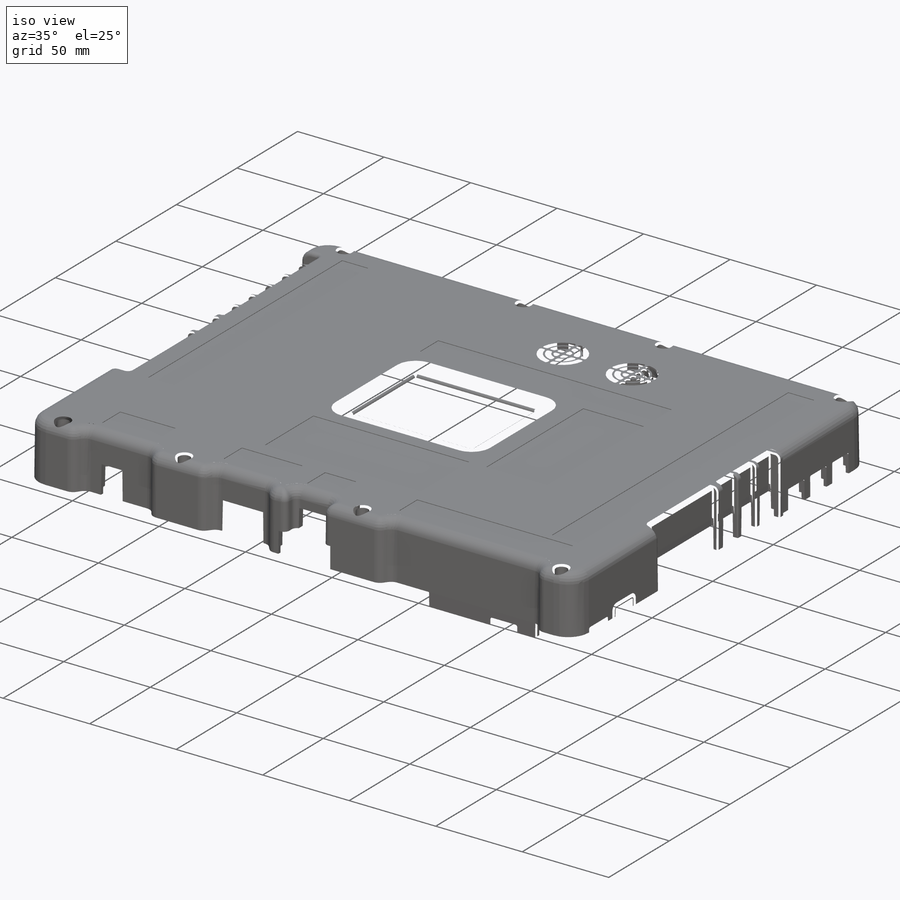
[diagram: iso view]
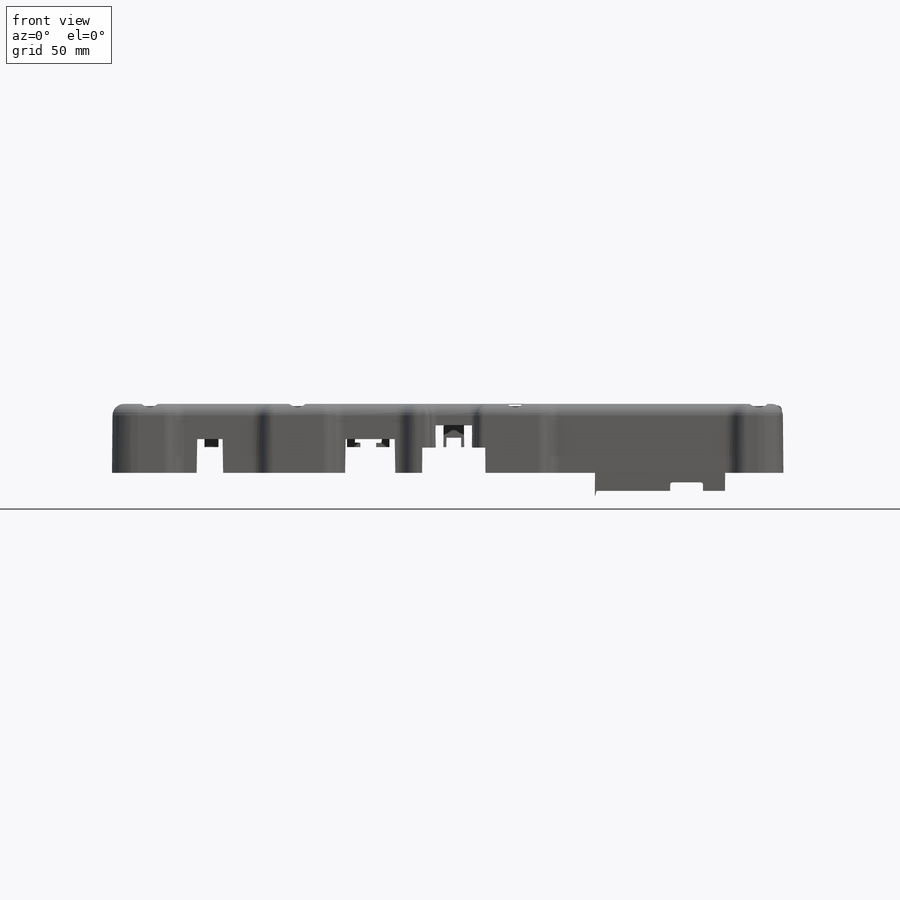
[diagram: front view]
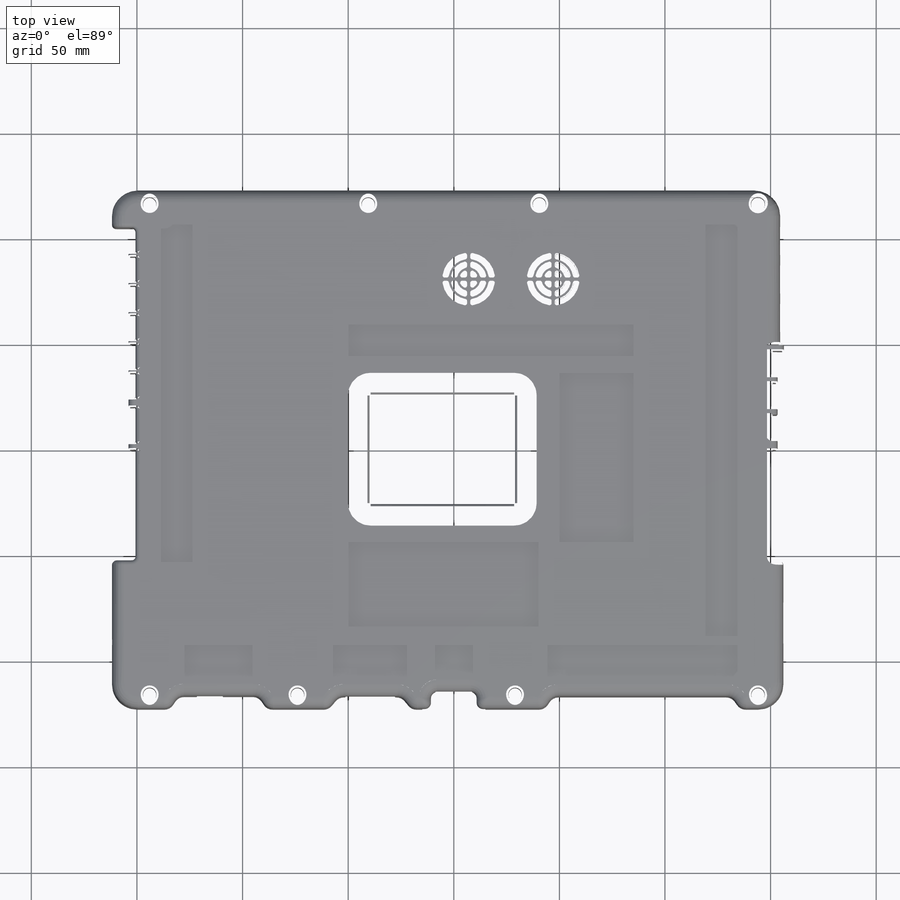
[diagram: top view]
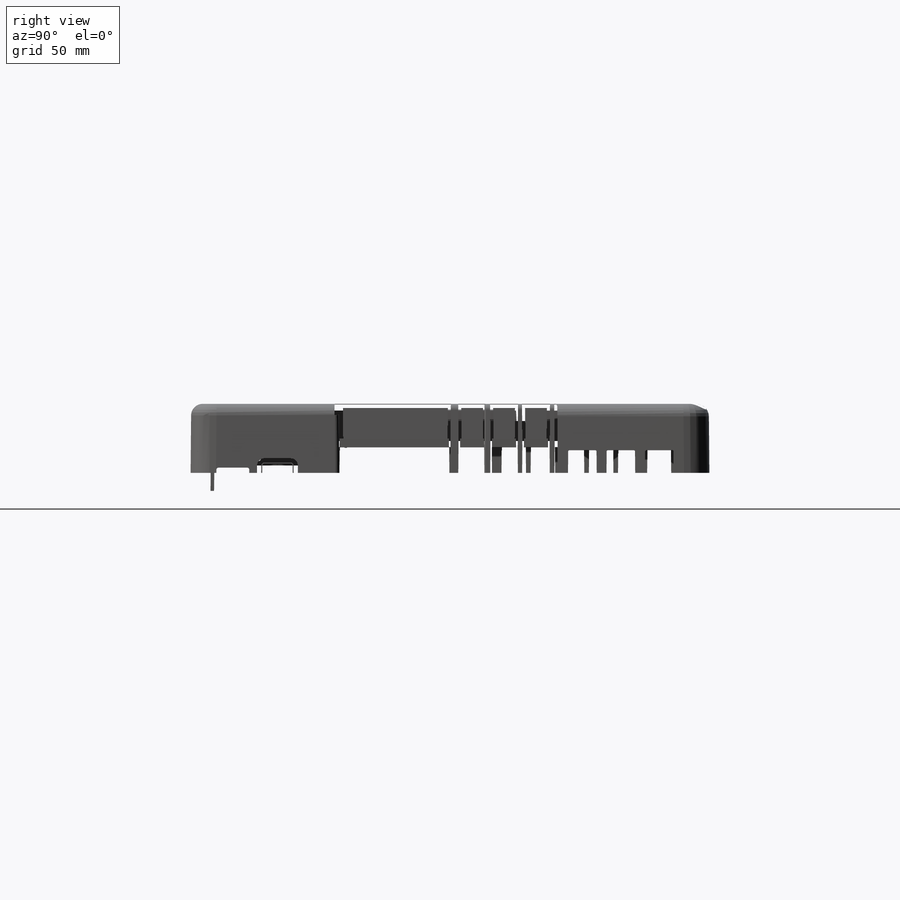
[diagram: right view]
SOLIDWORKS PART (.sldprt)
format: sldprt  version: not decoded by parser v0  size: 6,935,040 bytes
history: native  units: mm
features: sketch x84, fillet x63, cut_extrude x31, extrude x15, shell x13, plane x9, chamfer x8, mirror x5, pattern_linear x3, pattern_circular x2, material x1 (+10 scaffold rows collapsed)
feature tree (244):
  scaffold x10  (default folders/planes/origin — collapsed)
  material  "Material <not specified>"
  plane  "Спереди"
  plane  "Сверху"
  plane  "Справа"
  sketch  "Эскиз1"  dims[c1.D1=3.5mm c1.D2=~161.623866mm c1.D3=40.0mm c1.D4=29.0mm c1.D5=0.0mm c1.D6=4.0mm c1.D7=20.0mm c1.D8=4.0mm c1.D9=4.0mm c2.D5=85.0mm c2.D9=26.0mm c2.D10=52.0mm c2.D11=~1.514734mm c2.D12=5.5mm c2.D13=11.0mm]
  extrude  "Бобышка-Вытянуть1"  Depth=32.7mm
  fillet  "Скругление1"  Radius=12mm
  fillet  "Скругление2"  Radius=5mm
  sketch  "Эскиз2"  dims[c1.D1=~1.516108mm c2.D1=~56.847942deg c3.D1=39.6mm c3.D2=30.0mm c3.D3=40.0mm c3.D4=~40.004454mm]
  cut_extrude  "Вырез-Вытянуть2"  Depth=50mm
  fillet  "Скругление5"  Radius=5mm
  sketch  "Эскиз3"  dims[D1=22.0mm D2=8.0mm]
  cut_extrude  "Вырез-Вытянуть3"  Depth=50mm
  fillet  "Скругление6"  Radius=3mm
  fillet  "Скругление8"  Radius=6mm
  shell  "Оболочка1"  Thickness=3.2mm
  sketch  "Эскиз6"
  extrude  "Бобышка-Вытянуть2"  [1 undecoded]
  sketch  "Эскиз7"  dims[D1=3.5mm D2=3.0mm D3=3.0mm D4=5.0mm]
  extrude  "Бобышка-Вытянуть3"  Depth=12.1mm
  sketch  "Эскиз9"  dims[D1=~3.401663mm]
  cut_extrude  "Вырез-Вытянуть5"  [1 undecoded]
  sketch  "Эскиз11"
  cut_extrude  "Вырез-Вытянуть6"  [1 undecoded]
  fillet  "Fillet18"  Radius=5.5mm
  sketch  "Sketch25"  dims[c1.D1=15.0mm c1.D2=15.0mm c1.D3=15.0mm c1.D4=40.0mm c1.D5=15.0mm c1.D6=35.0mm c1.D7=35.0mm c1.D8=32.0mm c1.D9=18.0mm c1.D10=85.0mm c1.D11=10.0mm c1.D12=8.0mm c1.D13=18.0mm c2.D11=135.0mm c2.D10=10.0mm c2.D14=80.0mm c2.D15=10.0mm c2.D16=160.0mm c2.D17=195.0mm c2.D18=90.0mm]
  cut_extrude  "Cut-Extrude7"  Depth=0.3mm
  sketch  "Эскиз13"  dims[c1.D1=0.8mm c1.D2=0.8mm c2.D1=0.8mm c2.D3=0.8mm c3.D1=0.8mm]
  cut_extrude  "Вырез-Вытянуть7"  Depth=4mm
  sketch  "Эскиз15"  dims[c1.D1=0.3mm c1.D2=0.3mm c2.D1=0.3mm]
  extrude  "Бобышка-Вытянуть4"  [1 undecoded]
  fillet  "Скругление14"  Radius=2.8mm
  fillet  "Скругление15"  Radius=2mm
  fillet  "Скругление16"  Radius=2mm
  fillet  "Скругление17"  Radius=2mm
  fillet  "Скругление19"  Radius=2mm
  fillet  "Скругление20"  Radius=0.7mm
  fillet  "Скругление21"  Radius=0.75mm
  sketch  "Эскиз16"  dims[D1=0.0mm]
  cut_extrude  "Вырез-Вытянуть9"  Depth=13mm
  shell  "Уклон8"  [1 undecoded]
  fillet  "Скругление11"  Radius=2mm
  fillet  "Скругление12"  Radius=2mm
  fillet  "Скругление13"  Radius=0.55mm
  sketch  "Эскиз17"  dims[c1.D1=0.2mm c1.D2=~57.926167mm c2.D1=65.0mm c2.D2=10.0mm c2.D3=98.0mm c3.D1=5.0mm c3.D3=2.0deg c3.D5=2.5mm c3.D6=1.0mm c3.D7=5.0mm]
  fillet  "Скругление23"  Radius=0.5mm
  chamfer  "Фаска2"  Distance=3mm Angle=70deg
  fillet  "Скругление24"  Radius=10mm
  fillet  "Скругление25"  Radius=0.5mm
  fillet  "Скругление26"  Radius=1mm
  sketch  "Эскиз18"
  extrude  "Бобышка-Вытянуть6"  Depth=0.5mm
  sketch  "Эскиз22"  dims[D1=17.2mm D2=10.2mm D3=0.8mm D4=0.8mm D5=16.0mm D6=39.58mm D7=23.0mm]
  cut_extrude  "Вырез-Вытянуть12"  Depth=215.4mm
  shell  "Уклон11"  [1 undecoded]
  sketch  "Эскиз23"  dims[D1=1.25mm D2=1.25mm D3=3.0deg D5=3.0mm D6=1.0mm D7=5.0mm]
  sketch  "Эскиз25"  dims[c1.D1=1.225mm c1.D2=1.23mm c2.D1=215.4mm c2.D3=2.0deg c2.D5=2.0mm c2.D6=1.0mm c2.D7=5.0mm]
  sketch  "Эскиз26"  dims[D1=16.0mm D2=101.75mm]
  sketch  "Эскиз28"
  sketch  "Эскиз29"  dims[D1=24.0mm D2=20.0mm D3=16.0mm D4=12.0mm D5=8.0mm D6=4.0mm D7=1.25mm D8=2.5mm]
  plane  "Плоскость1"
  sketch  "Эскиз30"
  cut_extrude  "Вырез-Вытянуть13"  Depth=10mm
  fillet  "Скругление27"  Radius=0.5mm
  fillet  "Скругление28"  Radius=0.5mm
  pattern_circular  "Круговой массив1"  Count=4 Angle=360deg
  sketch  "Эскиз31"  dims[c1.D1=30.0mm c2.D1=5.0mm c2.D3=1.0deg c2.D5=2.5mm c2.D6=1.0mm c2.D7=5.0mm]
  pattern_linear  "Линейный массив8"  Count1=2 Count2=1 Spacing1=40mm Spacing2=50mm
  sketch  "Эскиз32"  dims[D1=30.0mm]
  cut_extrude  "Вырез-Вытянуть14"  Depth=24mm
  sketch  "Эскиз33"  dims[D1=24.0mm D3=1.0deg D5=2.2mm D6=1.0mm D7=5.0mm]
  sketch  "Эскиз34"  dims[D2=0.64mm D1=~10.74884mm]
  cut_extrude  "Вырез-Вытянуть15"  Depth=193mm
  shell  "Уклон13"  [1 undecoded]
  sketch  "Эскиз35"  dims[D1=13.5mm D2=75.12mm]
  sketch  "Эскиз36"  dims[D1=14.88mm D2=95.53mm]
  sketch  "Эскиз37"  dims[c1.D1=2.4mm c1.D2=6.0mm c2.D1=143.38mm]
  extrude  "Бобышка-Вытянуть8"  Depth=17.6mm
  sketch  "Эскиз38"  dims[D1=2.5mm]
  cut_extrude  "Вырез-Вытянуть16"  Depth=20mm
  sketch  "Эскиз39"  dims[D1=7.0mm D2=1.7mm]
  extrude  "Бобышка-Вытянуть9"  Depth=48.3mm
  sketch  "Эскиз40"  dims[D1=2.5mm]
  cut_extrude  "Вырез-Вытянуть17"  Depth=44mm
  sketch  "Эскиз41"  dims[c1.D1=6.5mm c1.D4=6.5mm c1.D5=6.5mm c1.D2=103.5mm c1.D3=144.0mm c2.D4=116.1mm c2.D5=70.0mm c2.D6=115.0mm]
  cut_extrude  "Вырез-Вытянуть18"  Depth=16mm
  sketch  "Эскиз42"  dims[D1=18.0mm D19=18.5mm D5=2.8mm D6=1.0mm D7=5.0mm]
  sketch  "Эскиз44"  dims[D1=3.4mm]
  extrude  "Бобышка-Вытянуть11"  Depth=3mm
  pattern_linear  "Линейный массив9"  Count1=2 Count2=1 Spacing1=103.5mm Spacing2=50mm
  mirror  "Зеркальное отражение2"
  sketch  "Эскиз45"  dims[D1=3.4mm]
  sketch  "Sketch67"  dims[D1=4.0mm D2=4.0mm D3=4.0mm D4=4.0mm]
  extrude  "Boss-Extrude12"  Depth=0.95mm
  shell  "Draft14"  [1 undecoded]
  fillet  "Fillet50"  Radius=1.5mm
  extrude  "Бобышка-Вытянуть12"  Depth=3mm
  shell  "Уклон14"  [1 undecoded]
  shell  "Draft7"  [1 undecoded]
  shell  "Draft8"  [1 undecoded]
  fillet  "Скругление30"  Radius=1mm
  shell  "Draft9"  [1 undecoded]
  sketch  "Эскиз46"  dims[c1.D1=2.5mm c1.D4=2.5mm c2.D1=~0.819267mm c2.D2=~5.262285mm c2.D3=1.5mm]
  cut_extrude  "Вырез-Вытянуть19"  Depth=34mm
  fillet  "Скругление31"  Radius=1mm
  sketch  "Эскиз47"  dims[D1=30.0mm]
  cut_extrude  "Вырез-Вытянуть20"  Depth=10.5mm
  sketch  "Эскиз49"  dims[D1=255.0mm D2=5.0mm D3=12.2mm]
  cut_extrude  "Вырез-Вытянуть22"  Depth=12mm
  fillet  "Скругление34"  Radius=2mm
  sketch  "Эскиз50"  dims[c1.D1=1.5mm c2.D1=3.5mm c2.D3=0.5deg c2.D5=1.45mm c2.D6=1.4mm c2.D7=5.0mm]
  sketch  "Эскиз51"
  cut_extrude  "Вырез-Вытянуть23"  Depth=10mm
  sketch  "Эскиз52"
  cut_extrude  "Вырез-Вытянуть24"  Depth=10mm
  sketch  "Эскиз53"  dims[D1=1.55mm]
  cut_extrude  "Вырез-Вытянуть25"  [1 undecoded]
  fillet  "Скругление35"  Radius=1mm
  fillet  "Скругление36"  Radius=1mm
  sketch  "Эскиз54"  dims[D1=10.0mm D3=1.0deg D5=1.5mm D6=1.0mm D7=5.0mm]
  fillet  "Скругление37"  Radius=1mm
  sketch  "Sketch1"  dims[D1=121.5mm D2=0.65mm D3=7.0mm]
  cut_extrude  "Cut-Extrude1"  Depth=3.5mm
  fillet  "Fillet1"  Radius=1mm
  fillet  "Fillet2"  Radius=1mm
  fillet  "Fillet3"  Radius=1mm
  pattern_linear  "LPattern2"  Count1=19 Count2=1 Spacing1=13.5mm Spacing2=10mm
  sketch  "Sketch2"  dims[D1=0.65mm D2=7.5mm]
  cut_extrude  "Cut-Extrude2"  [1 undecoded]
  fillet  "Fillet4"  Radius=0.5mm
  mirror  "Mirror1"
  sketch  "Sketch3"  dims[D1=3.5mm D3=1.0deg D5=3.0mm D6=10.0mm D7=5.0mm]
  fillet  "Fillet5"  Radius=1mm
  fillet  "Fillet6"  Radius=0.64mm
  sketch  "Sketch4"  dims[c1.D1=25.0mm c1.D2=42.5mm c1.D3=0.65mm c2.D2=42.5mm]
  plane  "Plane1"  Offset=12.5mm
  sketch  "Sketch5"  dims[c1.D1=8.0mm c1.D2=8.0mm c2.D1=4.0mm c2.D3=2.0deg c2.D5=2.0mm c2.D6=1.0mm c2.D7=5.0mm]
  chamfer  "Chamfer1"  Distance=4mm Angle=45deg
  fillet  "Fillet11"  Radius=1mm
  mirror  "Mirror3"
  fillet  "Fillet12"  Radius=1mm
  chamfer  "Chamfer2"  Distance=10mm Angle=60deg
  sketch  "Sketch6"  dims[D1=9.0mm D3=2.0deg D5=1.6mm D6=1.0mm D7=5.0mm]
  chamfer  "Chamfer3"  Distance=7mm Angle=40deg
  fillet  "Fillet13"  Radius=1mm
  pattern_circular  "CirPattern1"  Count=4 Angle=360deg
  plane  "Plane2"  Offset=34mm
  sketch  "Sketch10"  dims[c1.D1=18.0mm c2.D1=10.0mm c2.D3=1.0deg c2.D5=3.0mm c2.D6=10.0mm c2.D7=5.0mm]
  sketch  "Sketch11"  dims[D1=5.0mm]
  cut_extrude  "Cut-Extrude5"  Depth=10mm
  chamfer  "Chamfer4"  Distance=8mm Angle=30deg
  sketch  "Sketch12"  dims[c1.D1=12.0mm c2.D1=10.0mm c2.D3=1.0deg c2.D5=2.0mm c2.D6=2.0mm c2.D7=5.0mm]
  sketch  "Sketch13"  dims[D1=1.5mm D3=0.5deg D5=1.75mm D6=1.0mm D7=5.0mm]
  chamfer  "Chamfer5"  Distance=8mm Angle=30deg
  fillet  "Fillet15"  Radius=2mm
  sketch  "Sketch14"
  sketch  "Sketch15"  dims[D1=0.6mm]
  cut_extrude  "Cut-Extrude6"  Depth=22mm
  sketch  "Sketch16"  dims[D1=5.0mm D2=5.0mm D3=0.5deg D5=2.0mm D6=1.5mm D7=5.0mm]
  fillet  "Fillet16"  Radius=2mm
  sketch  "Sketch17"  dims[c1.D1=~6.151876mm c2.D1=~0.034377deg c3.D1=~6.151876mm c4.D1=~179.965623deg c5.D1=1.1mm c5.D2=1.1mm c5.D3=2.0mm]
  extrude  "Boss-Extrude1"  Depth=2mm
  chamfer  "Chamfer6"  Distance=1.75mm Angle=45deg
  sketch  "Sketch18"  dims[c1.D1=29.0mm c2.D1=4.0mm c2.D3=1.0deg c2.D5=1.5mm c2.D6=1.0mm c2.D7=5.0mm]
  sketch  "Sketch19"
  sketch  "Sketch21"  dims[c1.D1=2.0mm c1.D2=6.0mm c1.D3=6.5mm c2.D3=90.0deg c3.D3=4.0mm]
  extrude  "Boss-Extrude2"  [1 undecoded]
  sketch  "Sketch22"  dims[D3=1.0deg D5=2.0mm D6=1.0mm D7=5.0mm]
  sketch  "Sketch23"  dims[c1.D1=0.6mm c2.D1=2.0mm c2.D3=1.0deg c2.D5=2.0mm c2.D6=1.0mm c2.D7=5.0mm]
  fillet  "Fillet17"  Radius=0.8mm
  mirror  "Mirror4"
  sketch  "Sketch26"  dims[c1.D1=2.6mm c1.D2=2.6mm c1.D3=2.6mm c1.D4=3.4mm c1.D5=2.6mm c2.D2=58.0mm c2.D3=49.0mm c2.D4=6.5mm c2.D5=17.0mm]
  sketch  "Sketch28"  dims[c1.D1=0.2mm c1.D2=0.2mm c2.D1=15.58mm c2.D2=~3.811246mm c3.D2=135.0deg c4.D2=0.2mm]
  cut_extrude  "Cut-Extrude8"  Depth=2.5mm
  shell  "Draft2"  [1 undecoded]
  plane  "Plane3"  Offset=42mm
  sketch  "Sketch36"  dims[D1=4.5mm]
  sketch  "Sketch38"  dims[D3=0.8deg D19=12.0mm D5=2.0mm D6=1.0mm D7=5.0mm]
  sketch  "Sketch45"  dims[D1=0.4mm]
  cut_extrude  "Cut-Extrude15"  Depth=3mm
  sketch  "Sketch46"  dims[D1=0.4mm]
  cut_extrude  "Cut-Extrude16"  Depth=3mm
  fillet  "Fillet26"  Radius=0.7mm
  fillet  "Fillet27"  Radius=2mm
  fillet  "Fillet28"  Radius=2mm
  fillet  "Fillet29"  Radius=0.7mm
  fillet  "Fillet33"  Radius=0.5mm
  fillet  "Fillet34"  Radius=1mm
  sketch  "Sketch50"  dims[c1.D1=0.15mm c1.D2=0.15mm c1.D3=14.4mm c2.D1=14.4mm c2.D2=~6.125072mm]
  cut_extrude  "Cut-Extrude17"  Depth=4.4mm
  fillet  "Fillet38"  Radius=1mm
  sketch  "Sketch51"  dims[c1.D1=1.5mm c1.D2=1.85mm c1.D3=1.9998mm c2.D1=2.0mm]
  extrude  "Boss-Extrude8"  Depth=12mm
  fillet  "Fillet40"  Radius=0.5mm
  sketch  "Sketch52"  dims[c1.D4=5.5mm c1.D1=0.25mm c1.D2=0.25mm c1.D3=0.25mm c2.D1=15.5mm c2.D2=4.0mm]
  cut_extrude  "Cut-Extrude18"  [1 undecoded]
  shell  "Draft10"  [1 undecoded]
  fillet  "Fillet41"  Radius=1mm
  fillet  "Fillet42"  Radius=1mm
  fillet  "Fillet43"  Radius=1mm
  plane  "Plane4"
  sketch  "Sketch53"  dims[c1.D1=0.5mm c2.D1=2.2mm c2.D5=2.0mm c2.D6=1.0mm c2.D7=5.0mm]
  sketch  "Sketch54"
  extrude  "Boss-Extrude10"  Depth=2mm
  plane  "Plane5"
  mirror  "Mirror5"
  shell  "Draft12"  [1 undecoded]
  shell  "Draft13"  [1 undecoded]
  sketch  "Sketch55"  dims[c1.D1=1.0mm c2.D1=3.5mm c2.D3=0.5deg c2.D5=1.7mm c2.D6=1.4mm c2.D7=5.0mm]
  sketch  "Sketch56"
  sketch  "Sketch58"  dims[D1=7.0mm]
  extrude  "Boss-Extrude11"  Depth=40.5mm
  sketch  "Sketch59"  dims[D1=1.9mm]
  cut_extrude  "Cut-Extrude19"  [1 undecoded]
  sketch  "Sketch60"  dims[D3=0.5deg D5=1.8mm D6=1.0mm D7=5.0mm]
  fillet  "Fillet44"  Radius=1mm
  sketch  "Sketch61"  dims[D3=0.7deg D5=1.8mm D6=10.0mm D7=5.0mm]
  fillet  "Fillet45"  Radius=1mm
  sketch  "Sketch62"  dims[D1=10.0mm D3=0.25deg D5=0.1mm D6=1.4mm D7=5.0mm]
  sketch  "Sketch63"
  sketch  "Sketch64"  dims[D1=10.0mm D3=0.5deg D5=1.0mm D6=1.0mm D7=5.0mm]
  chamfer  "Chamfer7"  Distance=35mm Angle=15deg
  fillet  "Fillet46"  Radius=1mm
  sketch  "Sketch65"  dims[D1=~3.041967mm]
  cut_extrude  "Cut-Extrude20"  [1 undecoded]
  fillet  "Fillet47"  Radius=0.5mm
  sketch  "Sketch66"  dims[c1.D1=0.06mm c1.D2=1.5mm c1.D3=1.0mm c1.D4=1.0mm c2.D1=1.2mm c2.D3=0.5deg c2.D4=0.2deg c2.D5=0.8mm c2.D6=1.0mm c2.D7=5.0mm]
  fillet  "Fillet48"  Radius=0.2mm
  fillet  "Fillet51"  Radius=1mm
  fillet  "Fillet53"  Radius=0.725mm
  fillet  "Fillet54"  Radius=0.7mm
  fillet  "Fillet55"  Radius=0.7mm
  fillet  "Fillet56"  Radius=2mm
  fillet  "Fillet57"  Radius=1.99mm
decode coverage: 185 of 224 modeling features carry decoded parameters
note: ~ marks probable driven/reference dimensions
note: 22 parameter values undecoded
summary: no parameter record found for 22 features
note: suppression state not decoded; provenance and decode notes live in map.json
